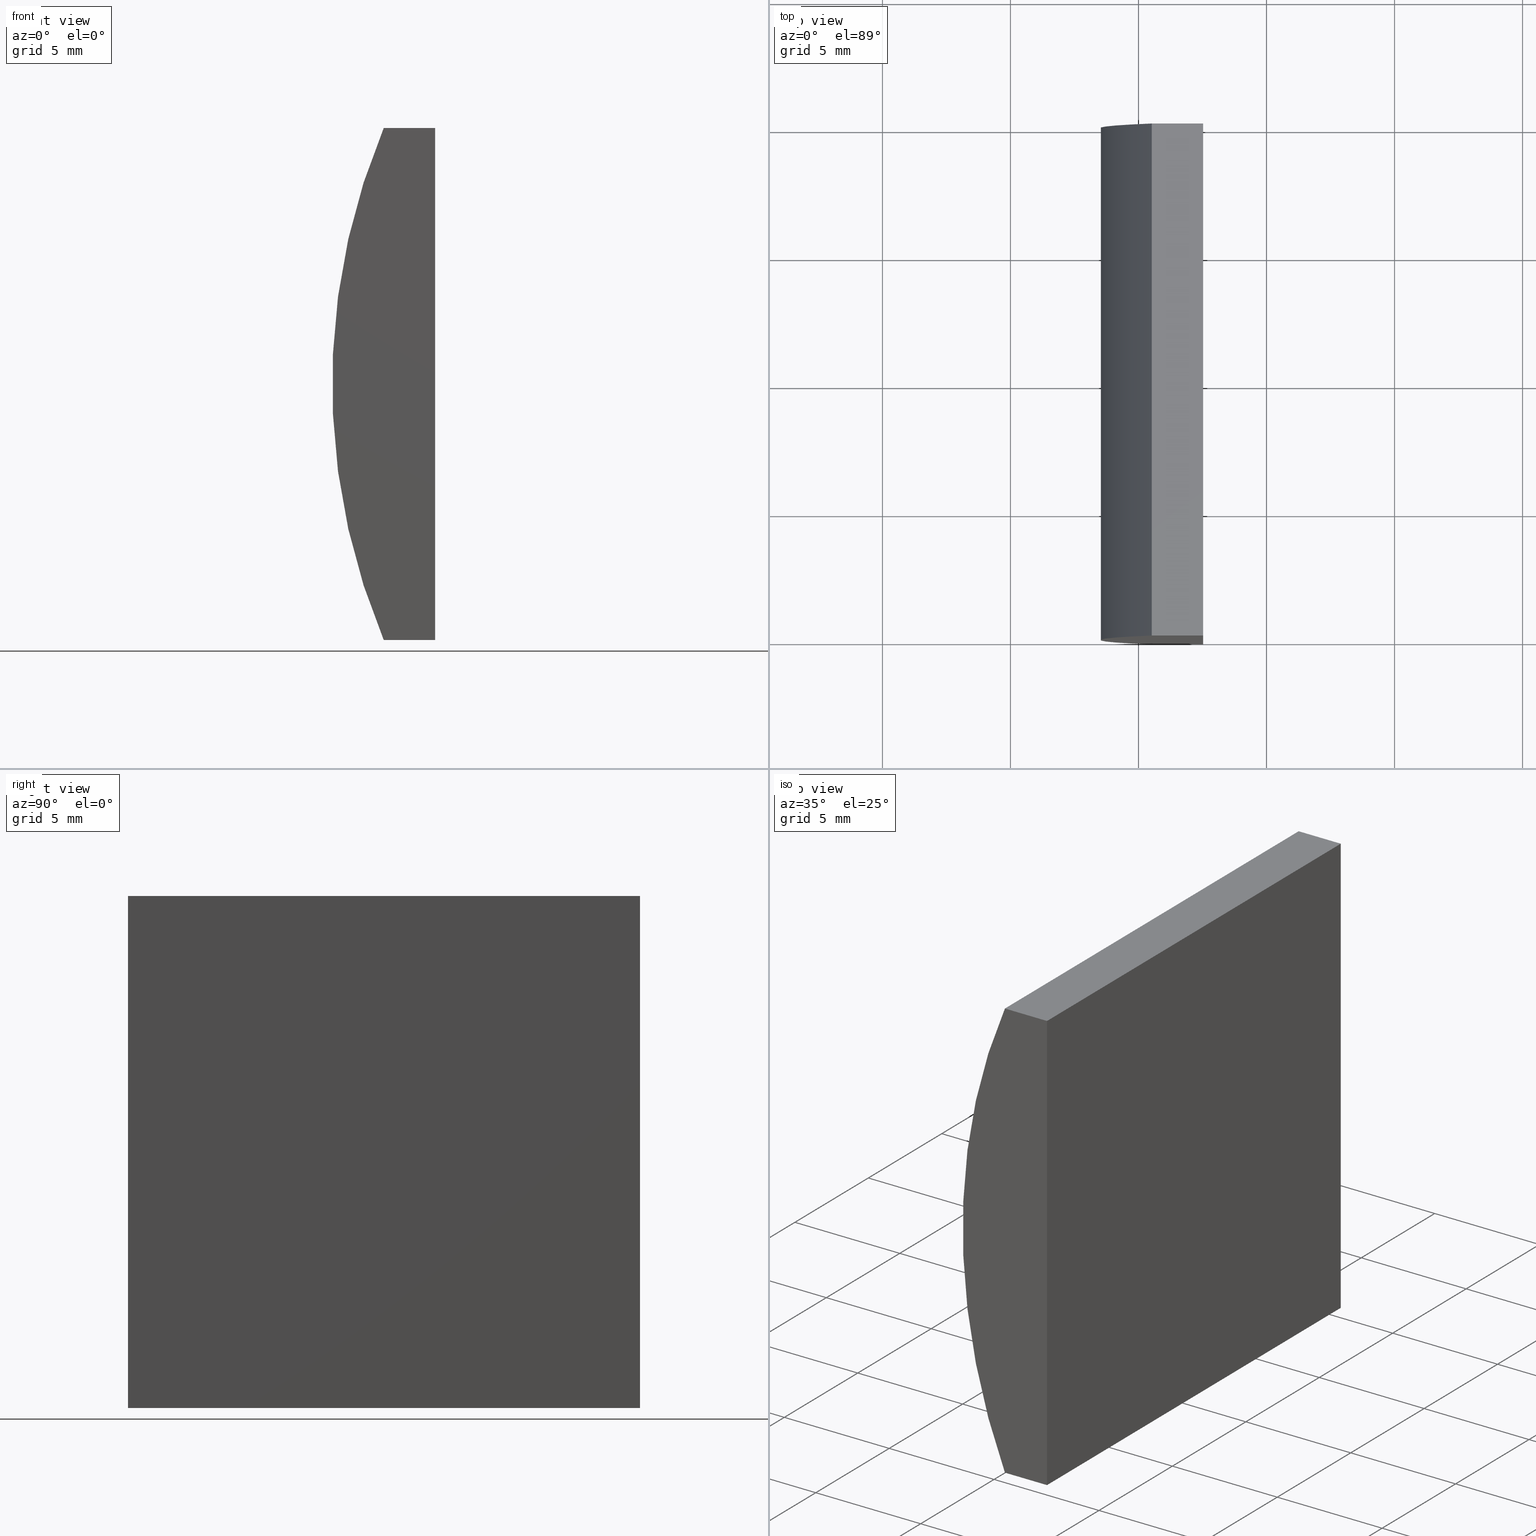
[diagram: canonical four-view strip — front | top / right | iso, engineering-drawing reading convention]
A machine part, canonical four-view strip (front | top / right | iso — engineering-drawing reading convention). The complete STEP part file that produces these views, byte-faithful:
ISO-10303-21;
HEADER;
FILE_DESCRIPTION (( 'STEP AP214' ),
    '1' );
FILE_NAME ('155029.STEP',
    '2019-06-17T06:20:43',
    ( 'user' ),
    ( '΢���й�' ),
    'SwSTEP 2.0',
    'SolidWorks 2016',
    '' );
FILE_SCHEMA (( 'AUTOMOTIVE_DESIGN' ));
ENDSEC;

DATA;
#1 = EDGE_LOOP ( 'NONE', ( #114, #41, #165, #33 ) ) ;
#2 = VECTOR ( 'NONE', #160, 1000.000000000000000 ) ;
#3 = FACE_OUTER_BOUND ( 'NONE', #1, .T. ) ;
#4 = EDGE_LOOP ( 'NONE', ( #122, #11, #178, #62 ) ) ;
#5 = EDGE_CURVE ( 'NONE', #54, #105, #12, .T. ) ;
#6 = CARTESIAN_POINT ( 'NONE',  ( 4.355204334851265500, 20.00000000000000000, 4.286263797015675000E-017 ) ) ;
#7 = DIRECTION ( 'NONE',  ( -1.000000000000000000, -0.0000000000000000000, -1.728313106595564600E-015 ) ) ;
#8 = ADVANCED_FACE ( 'NONE', ( #91 ), #184, .F. ) ;
#9 = FACE_OUTER_BOUND ( 'NONE', #151, .T. ) ;
#10 = EDGE_CURVE ( 'NONE', #99, #105, #108, .T. ) ;
#11 = ORIENTED_EDGE ( 'NONE', *, *, #176, .F. ) ;
#12 = CIRCLE ( 'NONE', #70, 25.85000000000000500 ) ;
#13 = CARTESIAN_POINT ( 'NONE',  ( -17.47479566514874000, 0.0000000000000000000, -9.999999999999996400 ) ) ;
#14 = DIRECTION ( 'NONE',  ( -1.000000000000000000, 0.0000000000000000000, -0.0000000000000000000 ) ) ;
#15 = ORIENTED_EDGE ( 'NONE', *, *, #199, .T. ) ;
#16 = CARTESIAN_POINT ( 'NONE',  ( -19.48221373003152100, 20.00000000000000000, -10.00000000000000000 ) ) ;
#17 = ORIENTED_EDGE ( 'NONE', *, *, #10, .T. ) ;
#18 = MECHANICAL_DESIGN_GEOMETRIC_PRESENTATION_REPRESENTATION (  '', ( #63 ), #83 ) ;
#19 = VECTOR ( 'NONE', #172, 1000.000000000000000 ) ;
#20 = VECTOR ( 'NONE', #185, 1000.000000000000000 ) ;
#21 = PRODUCT_DEFINITION_FORMATION_WITH_SPECIFIED_SOURCE ( '�κ�', '', #144, .NOT_KNOWN. ) ;
#22 = ORIENTED_EDGE ( 'NONE', *, *, #57, .F. ) ;
#23 = FACE_OUTER_BOUND ( 'NONE', #4, .T. ) ;
#24 = CARTESIAN_POINT ( 'NONE',  ( -17.47479566514874000, 20.00000000000000000, -9.999999999999996400 ) ) ;
#25 = PRODUCT_CONTEXT ( 'NONE', #158, 'mechanical' ) ;
#26 = AXIS2_PLACEMENT_3D ( 'NONE', #124, #27, #166 ) ;
#27 = DIRECTION ( 'NONE',  ( 0.0000000000000000000, 0.0000000000000000000, 1.000000000000000000 ) ) ;
#28 = CIRCLE ( 'NONE', #120, 25.85000000000000500 ) ;
#29 =( LENGTH_UNIT ( ) NAMED_UNIT ( * ) SI_UNIT ( .MILLI., .METRE. ) );
#30 =( NAMED_UNIT ( * ) PLANE_ANGLE_UNIT ( ) SI_UNIT ( $, .RADIAN. ) );
#31 =( NAMED_UNIT ( * ) SI_UNIT ( $, .STERADIAN. ) SOLID_ANGLE_UNIT ( ) );
#32 = VERTEX_POINT ( 'NONE', #102 ) ;
#33 = ORIENTED_EDGE ( 'NONE', *, *, #119, .T. ) ;
#34 = DIRECTION ( 'NONE',  ( 0.0000000000000000000, 1.000000000000000000, 0.0000000000000000000 ) ) ;
#35 = DIRECTION ( 'NONE',  ( -0.0000000000000000000, -1.000000000000000000, -0.0000000000000000000 ) ) ;
#36 = CARTESIAN_POINT ( 'NONE',  ( 4.355204334851265500, 20.00000000000000000, 4.286263797015675000E-017 ) ) ;
#37 = ORIENTED_EDGE ( 'NONE', *, *, #128, .T. ) ;
#38 = ORIENTED_EDGE ( 'NONE', *, *, #57, .T. ) ;
#39 = COLOUR_RGB ( '',1.000000000000000000, 1.000000000000000000, 1.000000000000000000 ) ;
#40 = LINE ( 'NONE', #13, #161 ) ;
#41 = ORIENTED_EDGE ( 'NONE', *, *, #10, .F. ) ;
#42 = AXIS2_PLACEMENT_3D ( 'NONE', #6, #35, #203 ) ;
#43 = DIRECTION ( 'NONE',  ( 0.0000000000000000000, 0.0000000000000000000, -1.000000000000000000 ) ) ;
#44 =( LENGTH_UNIT ( ) NAMED_UNIT ( * ) SI_UNIT ( .MILLI., .METRE. ) );
#45 = PRESENTATION_STYLE_ASSIGNMENT (( #159 ) ) ;
#46 = LINE ( 'NONE', #52, #65 ) ;
#47 = PLANE ( 'NONE',  #103 ) ;
#48 = CARTESIAN_POINT ( 'NONE',  ( -19.48221373003152100, 20.00000000000000000, -10.00000000000000000 ) ) ;
#49 = PRODUCT_DEFINITION ( 'δ֪', '', #21, #101 ) ;
#50 = PRODUCT_DEFINITION_SHAPE ( 'NONE', 'NONE',  #49 ) ;
#51 = CARTESIAN_POINT ( 'NONE',  ( -17.47479566514874000, 20.00000000000000000, -9.999999999999996400 ) ) ;
#52 = CARTESIAN_POINT ( 'NONE',  ( -17.47479566514874000, 20.00000000000000000, -9.999999999999996400 ) ) ;
#53 = CARTESIAN_POINT ( 'NONE',  ( -17.47479566514874000, 20.00000000000000000, -9.999999999999996400 ) ) ;
#54 = VERTEX_POINT ( 'NONE', #175 ) ;
#55 = PRESENTATION_STYLE_ASSIGNMENT (( #82 ) ) ;
#56 = FILL_AREA_STYLE_COLOUR ( '', #39 ) ;
#57 = EDGE_CURVE ( 'NONE', #69, #140, #196, .T. ) ;
#58 = CARTESIAN_POINT ( 'NONE',  ( 4.355204334851265500, 0.0000000000000000000, 4.286263797015675000E-017 ) ) ;
#59 = EDGE_LOOP ( 'NONE', ( #15, #60, #147, #17 ) ) ;
#60 = ORIENTED_EDGE ( 'NONE', *, *, #128, .F. ) ;
#61 = EDGE_CURVE ( 'NONE', #140, #99, #28, .T. ) ;
#62 = ORIENTED_EDGE ( 'NONE', *, *, #199, .F. ) ;
#63 = STYLED_ITEM ( 'NONE', ( #45 ), #125 ) ;
#64 = ADVANCED_FACE ( 'NONE', ( #3 ), #195, .T. ) ;
#65 = VECTOR ( 'NONE', #191, 1000.000000000000000 ) ;
#66 = MECHANICAL_DESIGN_GEOMETRIC_PRESENTATION_REPRESENTATION (  '', ( #179 ), #168 ) ;
#67 = CARTESIAN_POINT ( 'NONE',  ( -19.48221373003152100, 20.00000000000000000, 10.00000000000000000 ) ) ;
#68 =( GEOMETRIC_REPRESENTATION_CONTEXT ( 3 ) GLOBAL_UNCERTAINTY_ASSIGNED_CONTEXT ( ( #154 ) ) GLOBAL_UNIT_ASSIGNED_CONTEXT ( ( #29, #152, #31 ) ) REPRESENTATION_CONTEXT ( 'NONE', 'WORKASPACE' ) );
#69 = VERTEX_POINT ( 'NONE', #53 ) ;
#70 = AXIS2_PLACEMENT_3D ( 'NONE', #112, #34, #146 ) ;
#71 = ORIENTED_EDGE ( 'NONE', *, *, #132, .T. ) ;
#72 = ORIENTED_EDGE ( 'NONE', *, *, #74, .T. ) ;
#73 = CARTESIAN_POINT ( 'NONE',  ( -19.48221373003152100, 0.0000000000000000000, -10.00000000000000000 ) ) ;
#74 = EDGE_CURVE ( 'NONE', #99, #162, #117, .T. ) ;
#75 = ORIENTED_EDGE ( 'NONE', *, *, #201, .F. ) ;
#76 = CLOSED_SHELL ( 'NONE', ( #64, #8, #90, #194, #135, #149 ) ) ;
#77 = ORIENTED_EDGE ( 'NONE', *, *, #119, .F. ) ;
#78 = DIRECTION ( 'NONE',  ( 1.000000000000000000, 0.0000000000000000000, 0.0000000000000000000 ) ) ;
#79 = DIRECTION ( 'NONE',  ( -1.728313106595564600E-015, 0.0000000000000000000, 1.000000000000000000 ) ) ;
#80 = CARTESIAN_POINT ( 'NONE',  ( -19.48221373003152100, 20.00000000000000000, 10.00000000000000000 ) ) ;
#81 = EDGE_LOOP ( 'NONE', ( #71, #193, #75, #37 ) ) ;
#82 = SURFACE_STYLE_USAGE ( .BOTH. , #182 ) ;
#83 =( GEOMETRIC_REPRESENTATION_CONTEXT ( 3 ) GLOBAL_UNCERTAINTY_ASSIGNED_CONTEXT ( ( #142 ) ) GLOBAL_UNIT_ASSIGNED_CONTEXT ( ( #153, #188, #87 ) ) REPRESENTATION_CONTEXT ( 'NONE', 'WORKASPACE' ) );
#84 = DIRECTION ( 'NONE',  ( -1.000000000000000000, -0.0000000000000000000, -1.728313106595564600E-015 ) ) ;
#85 = DIRECTION ( 'NONE',  ( 0.0000000000000000000, 0.0000000000000000000, 1.000000000000000000 ) ) ;
#86 = CARTESIAN_POINT ( 'NONE',  ( -19.48221373003152100, 0.0000000000000000000, 10.00000000000000000 ) ) ;
#87 =( NAMED_UNIT ( * ) SI_UNIT ( $, .STERADIAN. ) SOLID_ANGLE_UNIT ( ) );
#88 = FILL_AREA_STYLE ('',( #56 ) ) ;
#89 = VECTOR ( 'NONE', #7, 1000.000000000000000 ) ;
#90 = ADVANCED_FACE ( 'NONE', ( #100 ), #109, .F. ) ;
#91 = FACE_OUTER_BOUND ( 'NONE', #59, .T. ) ;
#92 = EDGE_CURVE ( 'NONE', #69, #32, #174, .T. ) ;
#93 = VECTOR ( 'NONE', #78, 1000.000000000000000 ) ;
#94 = DIRECTION ( 'NONE',  ( -0.0000000000000000000, -1.000000000000000000, -0.0000000000000000000 ) ) ;
#95 = APPLICATION_PROTOCOL_DEFINITION ( 'draft international standard', 'automotive_design', 1998, #158 ) ;
#96 = LINE ( 'NONE', #86, #93 ) ;
#97 = FILL_AREA_STYLE_COLOUR ( '', #131 ) ;
#98 = CARTESIAN_POINT ( 'NONE',  ( -19.48221373003152100, 20.00000000000000000, 10.00000000000000000 ) ) ;
#99 = VERTEX_POINT ( 'NONE', #98 ) ;
#100 = FACE_OUTER_BOUND ( 'NONE', #81, .T. ) ;
#101 = PRODUCT_DEFINITION_CONTEXT ( 'detailed design', #150, 'design' ) ;
#102 = CARTESIAN_POINT ( 'NONE',  ( -17.47479566514874000, 0.0000000000000000000, -9.999999999999996400 ) ) ;
#103 = AXIS2_PLACEMENT_3D ( 'NONE', #58, #134, #107 ) ;
#104 = MANIFOLD_SOLID_BREP ( '͹̨-����1', #76 ) ;
#105 = VERTEX_POINT ( 'NONE', #169 ) ;
#106 = ORIENTED_EDGE ( 'NONE', *, *, #176, .T. ) ;
#107 = DIRECTION ( 'NONE',  ( 0.0000000000000000000, -0.0000000000000000000, 1.000000000000000000 ) ) ;
#108 = LINE ( 'NONE', #80, #127 ) ;
#109 = PLANE ( 'NONE',  #157 ) ;
#110 = FILL_AREA_STYLE ('',( #97 ) ) ;
#111 = AXIS2_PLACEMENT_3D ( 'NONE', #141, #79, #123 ) ;
#112 = CARTESIAN_POINT ( 'NONE',  ( 4.355204334851265500, 0.0000000000000000000, 4.286263797015675000E-017 ) ) ;
#113 = VERTEX_POINT ( 'NONE', #171 ) ;
#114 = ORIENTED_EDGE ( 'NONE', *, *, #5, .T. ) ;
#115 = SURFACE_SIDE_STYLE ('',( #133 ) ) ;
#116 = DIRECTION ( 'NONE',  ( 1.000000000000000000, 0.0000000000000000000, 0.0000000000000000000 ) ) ;
#117 = LINE ( 'NONE', #187, #173 ) ;
#118 = AXIS2_PLACEMENT_3D ( 'NONE', #67, #43, #14 ) ;
#119 = EDGE_CURVE ( 'NONE', #140, #54, #167, .T. ) ;
#120 = AXIS2_PLACEMENT_3D ( 'NONE', #183, #156, #85 ) ;
#121 = CARTESIAN_POINT ( 'NONE',  ( -17.47479566514873300, 20.00000000000000000, 10.00000000000000000 ) ) ;
#122 = ORIENTED_EDGE ( 'NONE', *, *, #5, .F. ) ;
#123 = DIRECTION ( 'NONE',  ( 1.000000000000000000, 0.0000000000000000000, 1.728313106595564600E-015 ) ) ;
#124 = CARTESIAN_POINT ( 'NONE',  ( 0.0000000000000000000, 0.0000000000000000000, 0.0000000000000000000 ) ) ;
#125 = ADVANCED_BREP_SHAPE_REPRESENTATION ( '155029', ( #104, #26 ), #68 ) ;
#126 = PLANE ( 'NONE',  #163 ) ;
#127 = VECTOR ( 'NONE', #94, 1000.000000000000000 ) ;
#128 = EDGE_CURVE ( 'NONE', #162, #113, #155, .T. ) ;
#129 = FACE_OUTER_BOUND ( 'NONE', #180, .T. ) ;
#130 = ORIENTED_EDGE ( 'NONE', *, *, #92, .T. ) ;
#131 = COLOUR_RGB ( '',1.000000000000000000, 1.000000000000000000, 1.000000000000000000 ) ;
#132 = EDGE_CURVE ( 'NONE', #113, #32, #40, .T. ) ;
#133 = SURFACE_STYLE_FILL_AREA ( #88 ) ;
#134 = DIRECTION ( 'NONE',  ( 0.0000000000000000000, 1.000000000000000000, 0.0000000000000000000 ) ) ;
#135 = ADVANCED_FACE ( 'NONE', ( #129 ), #126, .T. ) ;
#136 = ORIENTED_EDGE ( 'NONE', *, *, #61, .T. ) ;
#137 = CARTESIAN_POINT ( 'NONE',  ( -19.48221373003152100, 20.00000000000000000, -10.00000000000000000 ) ) ;
#138 = PRESENTATION_LAYER_ASSIGNMENT (  '', '', ( #63 ) ) ;
#139 = DIRECTION ( 'NONE',  ( 0.0000000000000000000, -0.0000000000000000000, 1.000000000000000000 ) ) ;
#140 = VERTEX_POINT ( 'NONE', #48 ) ;
#141 = CARTESIAN_POINT ( 'NONE',  ( -19.48221373003152100, 20.00000000000000000, -10.00000000000000000 ) ) ;
#142 = UNCERTAINTY_MEASURE_WITH_UNIT (LENGTH_MEASURE( 1.000000000000000100E-005 ), #153, 'distance_accuracy_value', 'NONE');
#143 = APPLICATION_PROTOCOL_DEFINITION ( 'draft international standard', 'automotive_design', 1998, #150 ) ;
#144 = PRODUCT ( '155029', '155029', '', ( #25 ) ) ;
#145 = DIRECTION ( 'NONE',  ( -3.469446951953614700E-016, -0.0000000000000000000, -1.000000000000000000 ) ) ;
#146 = DIRECTION ( 'NONE',  ( 0.0000000000000000000, 0.0000000000000000000, 1.000000000000000000 ) ) ;
#147 = ORIENTED_EDGE ( 'NONE', *, *, #74, .F. ) ;
#148 = LINE ( 'NONE', #73, #89 ) ;
#149 = ADVANCED_FACE ( 'NONE', ( #23 ), #47, .F. ) ;
#150 = APPLICATION_CONTEXT ( 'automotive_design' ) ;
#151 = EDGE_LOOP ( 'NONE', ( #106, #77, #22, #130 ) ) ;
#152 =( NAMED_UNIT ( * ) PLANE_ANGLE_UNIT ( ) SI_UNIT ( $, .RADIAN. ) );
#153 =( LENGTH_UNIT ( ) NAMED_UNIT ( * ) SI_UNIT ( .MILLI., .METRE. ) );
#154 = UNCERTAINTY_MEASURE_WITH_UNIT (LENGTH_MEASURE( 1.000000000000000100E-005 ), #29, 'distance_accuracy_value', 'NONE');
#155 = LINE ( 'NONE', #121, #20 ) ;
#156 = DIRECTION ( 'NONE',  ( 0.0000000000000000000, 1.000000000000000000, 0.0000000000000000000 ) ) ;
#157 = AXIS2_PLACEMENT_3D ( 'NONE', #24, #202, #204 ) ;
#158 = APPLICATION_CONTEXT ( 'automotive_design' ) ;
#159 = SURFACE_STYLE_USAGE ( .BOTH. , #115 ) ;
#160 = DIRECTION ( 'NONE',  ( -0.0000000000000000000, -1.000000000000000000, -0.0000000000000000000 ) ) ;
#161 = VECTOR ( 'NONE', #145, 1000.000000000000000 ) ;
#162 = VERTEX_POINT ( 'NONE', #186 ) ;
#163 = AXIS2_PLACEMENT_3D ( 'NONE', #36, #200, #139 ) ;
#164 = ORIENTED_EDGE ( 'NONE', *, *, #201, .T. ) ;
#165 = ORIENTED_EDGE ( 'NONE', *, *, #61, .F. ) ;
#166 = DIRECTION ( 'NONE',  ( 1.000000000000000000, 0.0000000000000000000, 0.0000000000000000000 ) ) ;
#167 = LINE ( 'NONE', #137, #2 ) ;
#168 =( GEOMETRIC_REPRESENTATION_CONTEXT ( 3 ) GLOBAL_UNCERTAINTY_ASSIGNED_CONTEXT ( ( #190 ) ) GLOBAL_UNIT_ASSIGNED_CONTEXT ( ( #44, #30, #198 ) ) REPRESENTATION_CONTEXT ( 'NONE', 'WORKASPACE' ) );
#169 = CARTESIAN_POINT ( 'NONE',  ( -19.48221373003152100, 0.0000000000000000000, 10.00000000000000000 ) ) ;
#170 = SURFACE_STYLE_FILL_AREA ( #110 ) ;
#171 = CARTESIAN_POINT ( 'NONE',  ( -17.47479566514873300, 0.0000000000000000000, 10.00000000000000000 ) ) ;
#172 = DIRECTION ( 'NONE',  ( -0.0000000000000000000, -1.000000000000000000, -0.0000000000000000000 ) ) ;
#173 = VECTOR ( 'NONE', #116, 1000.000000000000000 ) ;
#174 = LINE ( 'NONE', #51, #19 ) ;
#175 = CARTESIAN_POINT ( 'NONE',  ( -19.48221373003152100, 0.0000000000000000000, -10.00000000000000000 ) ) ;
#176 = EDGE_CURVE ( 'NONE', #32, #54, #148, .T. ) ;
#177 = VECTOR ( 'NONE', #84, 1000.000000000000000 ) ;
#178 = ORIENTED_EDGE ( 'NONE', *, *, #132, .F. ) ;
#179 = STYLED_ITEM ( 'NONE', ( #55 ), #104 ) ;
#180 = EDGE_LOOP ( 'NONE', ( #136, #72, #164, #38 ) ) ;
#181 = PRODUCT_RELATED_PRODUCT_CATEGORY ( 'part', '', ( #144 ) ) ;
#182 = SURFACE_SIDE_STYLE ('',( #170 ) ) ;
#183 = CARTESIAN_POINT ( 'NONE',  ( 4.355204334851265500, 20.00000000000000000, 4.286263797015675000E-017 ) ) ;
#184 = PLANE ( 'NONE',  #118 ) ;
#185 = DIRECTION ( 'NONE',  ( -0.0000000000000000000, -1.000000000000000000, -0.0000000000000000000 ) ) ;
#186 = CARTESIAN_POINT ( 'NONE',  ( -17.47479566514873300, 20.00000000000000000, 10.00000000000000000 ) ) ;
#187 = CARTESIAN_POINT ( 'NONE',  ( -19.48221373003152100, 20.00000000000000000, 10.00000000000000000 ) ) ;
#188 =( NAMED_UNIT ( * ) PLANE_ANGLE_UNIT ( ) SI_UNIT ( $, .RADIAN. ) );
#189 = PRESENTATION_LAYER_ASSIGNMENT (  '', '', ( #179 ) ) ;
#190 = UNCERTAINTY_MEASURE_WITH_UNIT (LENGTH_MEASURE( 1.000000000000000100E-005 ), #44, 'distance_accuracy_value', 'NONE');
#191 = DIRECTION ( 'NONE',  ( -3.469446951953614700E-016, -0.0000000000000000000, -1.000000000000000000 ) ) ;
#192 = SHAPE_DEFINITION_REPRESENTATION ( #50, #125 ) ;
#193 = ORIENTED_EDGE ( 'NONE', *, *, #92, .F. ) ;
#194 = ADVANCED_FACE ( 'NONE', ( #9 ), #197, .F. ) ;
#195 = CYLINDRICAL_SURFACE ( 'NONE', #42, 25.85000000000000500 ) ;
#196 = LINE ( 'NONE', #16, #177 ) ;
#197 = PLANE ( 'NONE',  #111 ) ;
#198 =( NAMED_UNIT ( * ) SI_UNIT ( $, .STERADIAN. ) SOLID_ANGLE_UNIT ( ) );
#199 = EDGE_CURVE ( 'NONE', #105, #113, #96, .T. ) ;
#200 = DIRECTION ( 'NONE',  ( 0.0000000000000000000, 1.000000000000000000, 0.0000000000000000000 ) ) ;
#201 = EDGE_CURVE ( 'NONE', #162, #69, #46, .T. ) ;
#202 = DIRECTION ( 'NONE',  ( -1.000000000000000000, 0.0000000000000000000, 3.469446951953615200E-016 ) ) ;
#203 = DIRECTION ( 'NONE',  ( 0.0000000000000000000, 0.0000000000000000000, -1.000000000000000000 ) ) ;
#204 = DIRECTION ( 'NONE',  ( 3.469446951953615200E-016, 0.0000000000000000000, 1.000000000000000000 ) ) ;
ENDSEC;
END-ISO-10303-21;
